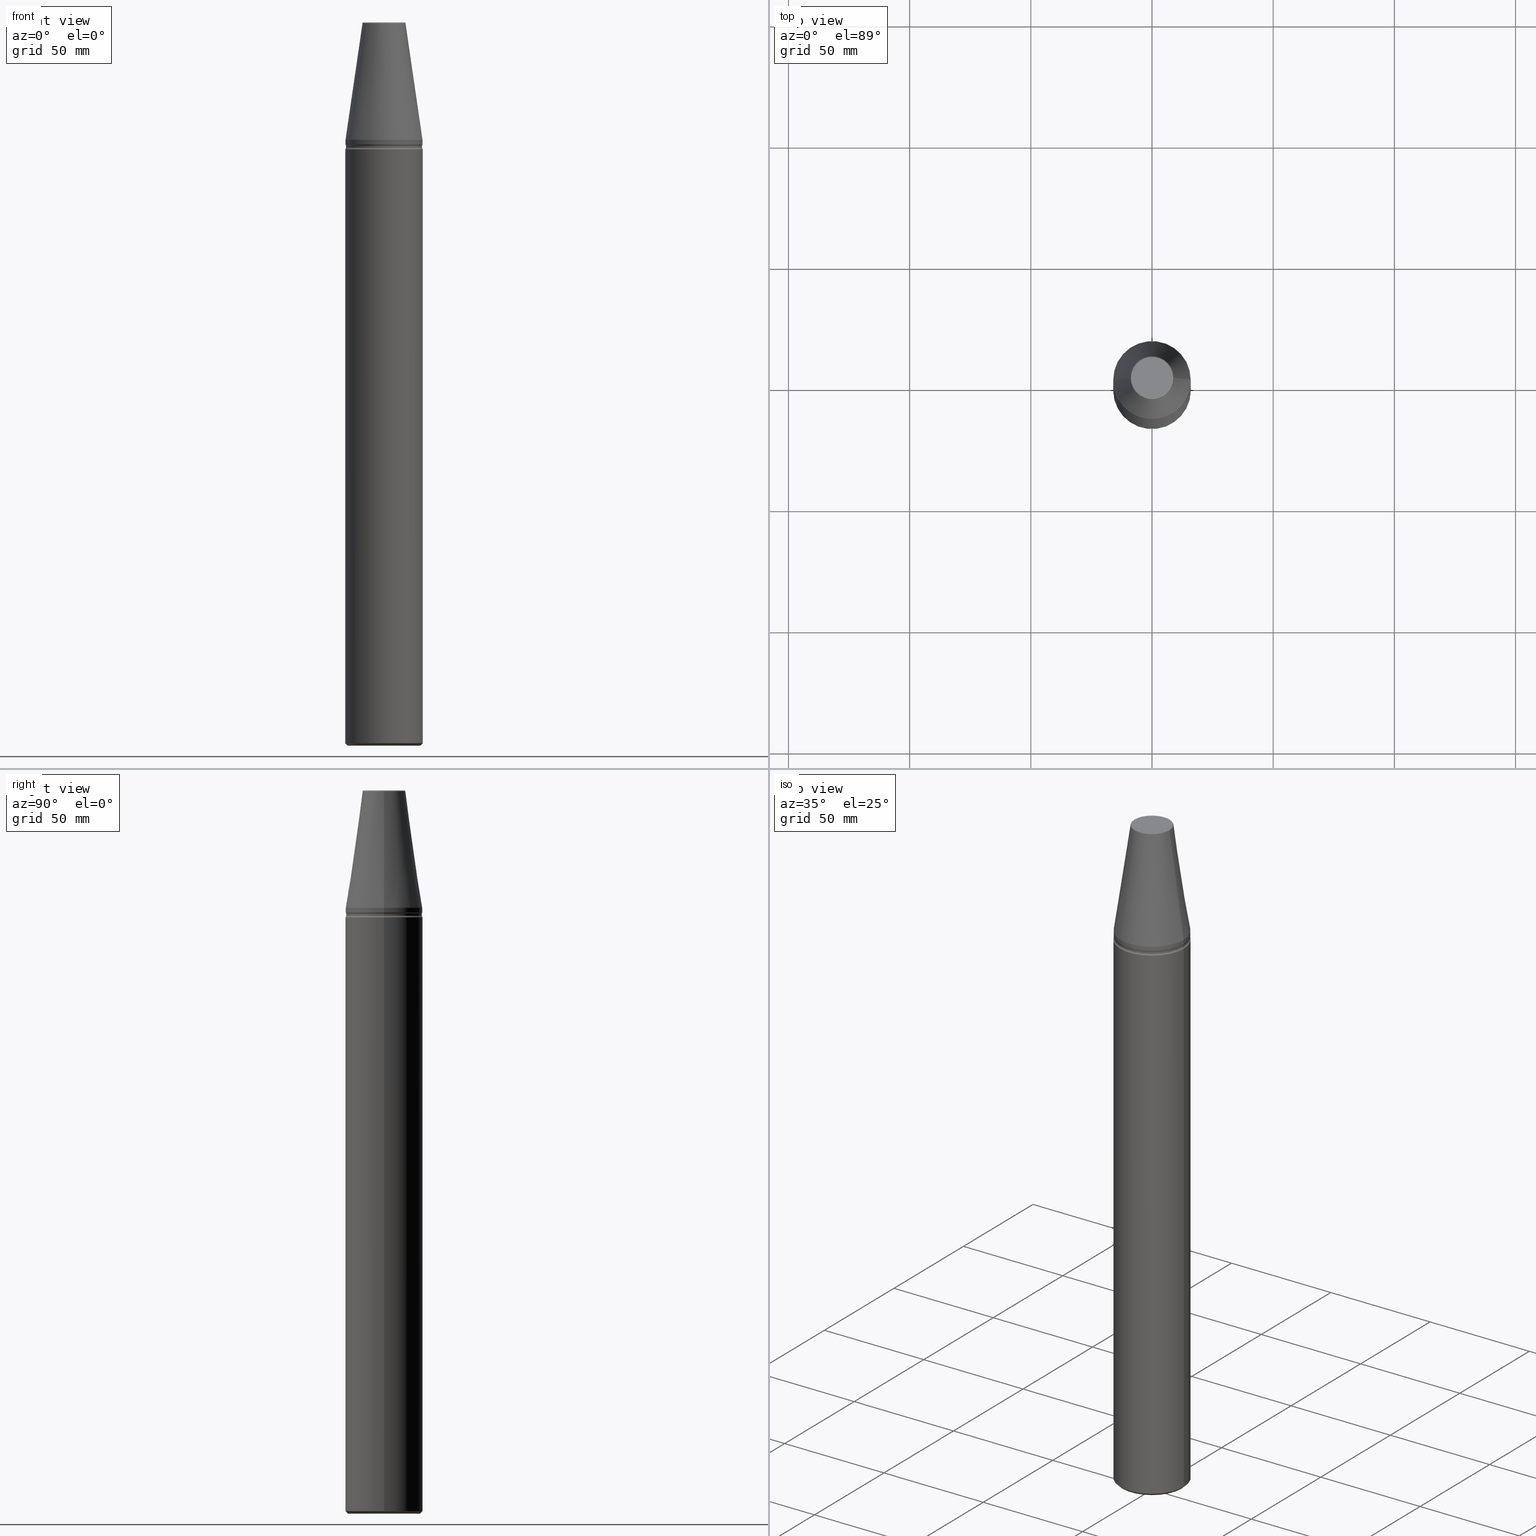
[diagram: canonical four-view strip — front | top / right | iso, engineering-drawing reading convention]
A machine part, canonical four-view strip (front | top / right | iso — engineering-drawing reading convention). The complete STEP part file that produces these views, byte-faithful:
ISO-10303-21;
HEADER;
FILE_DESCRIPTION (( 'STEP AP203' ),
    '1' );
FILE_NAME ('BT30 MASTER MANDRELL DIA 32 L 250.STEP',
    '2019-05-24T06:28:05',
    ( '' ),
    ( '' ),
    'SwSTEP 2.0',
    'SolidWorks 2014',
    '' );
FILE_SCHEMA (( 'CONFIG_CONTROL_DESIGN' ));
ENDSEC;

DATA;
#1 = AXIS2_PLACEMENT_3D ( 'NONE', #134, #492, #491 ) ;
#2 = DATE_AND_TIME ( #138, #247 ) ;
#3 = ORIENTED_EDGE ( 'NONE', *, *, #17, .F. ) ;
#4 = EDGE_CURVE ( 'NONE', #451, #322, #252, .T. ) ;
#5 = AXIS2_PLACEMENT_3D ( 'NONE', #18, #308, #188 ) ;
#6 = EDGE_LOOP ( 'NONE', ( #277, #95, #214, #128 ) ) ;
#7 = CARTESIAN_POINT ( 'NONE',  ( 0.0000000000000000000, 0.0000000000000000000, -249.0000000000001100 ) ) ;
#8 = CC_DESIGN_APPROVAL ( #21, ( #161 ) ) ;
#9 = EDGE_CURVE ( 'NONE', #198, #57, #10, .T. ) ;
#10 = CIRCLE ( 'NONE', #131, 15.87499999999986100 ) ;
#11 = CARTESIAN_POINT ( 'NONE',  ( -15.99999999999979200, 1.959434878635739500E-015, 101.9861575583861400 ) ) ;
#12 = PERSON ( 'UNSPECIFIED', 'UNSPECIFIED', 'UNSPECIFIED', ('UNSPECIFIED'), ('UNSPECIFIED'), ('UNSPECIFIED') ) ;
#13 = CARTESIAN_POINT ( 'NONE',  ( 0.0000000000000000000, 15.00000000000012400, -250.0000000000000000 ) ) ;
#14 = LINE ( 'NONE', #343, #246 ) ;
#15 = EDGE_CURVE ( 'NONE', #451, #117, #351, .T. ) ;
#16 = AXIS2_PLACEMENT_3D ( 'NONE', #377, #475, #147 ) ;
#17 = EDGE_CURVE ( 'NONE', #415, #395, #148, .T. ) ;
#18 = CARTESIAN_POINT ( 'NONE',  ( 0.0000000000000000000, 0.0000000000000000000, -249.9999999999997700 ) ) ;
#19 = ADVANCED_FACE ( 'NONE', ( #440 ), #119, .T. ) ;
#20 = CC_DESIGN_PERSON_AND_ORGANIZATION_ASSIGNMENT ( #105, #407, ( #506 ) ) ;
#21 = APPROVAL ( #387, 'UNSPECIFIED' ) ;
#22 = ORIENTED_EDGE ( 'NONE', *, *, #55, .F. ) ;
#23 = CARTESIAN_POINT ( 'NONE',  ( 15.67499999999966100, 0.0000000000000000000, -2.428901384101678200 ) ) ;
#24 = EDGE_LOOP ( 'NONE', ( #288, #461, #336, #282 ) ) ;
#25 = VECTOR ( 'NONE', #391, 1000.000000000000100 ) ;
#26 = CARTESIAN_POINT ( 'NONE',  ( -15.99999999999979200, 0.0000000000000000000, -4.000000000000447600 ) ) ;
#27 = CARTESIAN_POINT ( 'NONE',  ( 0.0000000000000000000, 0.0000000000000000000, -249.9999999999997700 ) ) ;
#28 = ORIENTED_EDGE ( 'NONE', *, *, #168, .F. ) ;
#29 = DIRECTION ( 'NONE',  ( 1.000000000000000000, 0.0000000000000000000, 0.0000000000000000000 ) ) ;
#30 = CARTESIAN_POINT ( 'NONE',  ( 0.0000000000000000000, 0.0000000000000000000, 2.220446049250313100E-013 ) ) ;
#31 = DIRECTION ( 'NONE',  ( -1.000000000000000000, 1.224646799147350000E-016, 0.0000000000000000000 ) ) ;
#32 = AXIS2_PLACEMENT_3D ( 'NONE', #413, #296, #486 ) ;
#33 = CARTESIAN_POINT ( 'NONE',  ( 0.0000000000000000000, 0.0000000000000000000, -249.9999999999997700 ) ) ;
#34 = CIRCLE ( 'NONE', #125, 15.99999999999979200 ) ;
#35 = DIRECTION ( 'NONE',  ( -0.0000000000000000000, -0.0000000000000000000, 1.000000000000000000 ) ) ;
#36 = CARTESIAN_POINT ( 'NONE',  ( 15.67499999999966100, 1.939534368149586900E-015, -3.303035250834529500 ) ) ;
#37 = ADVANCED_FACE ( 'NONE', ( #326 ), #420, .T. ) ;
#38 = ORIENTED_EDGE ( 'NONE', *, *, #15, .T. ) ;
#39 = DIRECTION ( 'NONE',  ( 1.000000000000000000, 0.0000000000000000000, 0.0000000000000000000 ) ) ;
#40 = EDGE_LOOP ( 'NONE', ( #84, #416, #75, #452 ) ) ;
#41 = CARTESIAN_POINT ( 'NONE',  ( 0.0000000000000000000, 0.0000000000000000000, -2.428901384101678200 ) ) ;
#42 = VECTOR ( 'NONE', #423, 1000.000000000000000 ) ;
#43 = VERTEX_POINT ( 'NONE', #331 ) ;
#44 = LINE ( 'NONE', #26, #25 ) ;
#45 = DIRECTION ( 'NONE',  ( -0.0000000000000000000, -0.0000000000000000000, 1.000000000000000000 ) ) ;
#46 = EDGE_LOOP ( 'NONE', ( #345, #226, #265, #273 ) ) ;
#47 = CARTESIAN_POINT ( 'NONE',  ( 15.99999999999979200, 0.0000000000000000000, -249.0000000000001100 ) ) ;
#48 = AXIS2_PLACEMENT_3D ( 'NONE', #361, #335, #444 ) ;
#49 = DIRECTION ( 'NONE',  ( 1.000000000000000000, 0.0000000000000000000, 0.0000000000000000000 ) ) ;
#50 = FACE_OUTER_BOUND ( 'NONE', #238, .T. ) ;
#51 = DIRECTION ( 'NONE',  ( 1.000000000000000000, 0.0000000000000000000, 0.0000000000000000000 ) ) ;
#52 = CARTESIAN_POINT ( 'NONE',  ( -8.384228427309015100, 1.057067554674890200E-015, 48.39999999999985600 ) ) ;
#53 = CARTESIAN_POINT ( 'NONE',  ( -15.99999999999979200, 1.959434878635739500E-015, -249.0000000000001100 ) ) ;
#54 = DIRECTION ( 'NONE',  ( -1.000000000000000000, 0.0000000000000000000, 0.0000000000000000000 ) ) ;
#55 = EDGE_CURVE ( 'NONE', #456, #410, #339, .T. ) ;
#56 = DIRECTION ( 'NONE',  ( 1.000000000000000000, 0.0000000000000000000, 0.0000000000000000000 ) ) ;
#57 = VERTEX_POINT ( 'NONE', #330 ) ;
#58 = AXIS2_PLACEMENT_3D ( 'NONE', #146, #35, #49 ) ;
#59 = AXIS2_PLACEMENT_3D ( 'NONE', #468, #235, #275 ) ;
#60 = LOCAL_TIME ( 11, 58, 5.000000000000000000, #182 ) ;
#61 = EDGE_LOOP ( 'NONE', ( #301, #334, #28, #155 ) ) ;
#62 = TOROIDAL_SURFACE ( 'NONE', #122, 8.384228427309237100, 0.5000000000002493600 ) ;
#63 = EDGE_CURVE ( 'NONE', #451, #476, #430, .T. ) ;
#64 = PRODUCT_DEFINITION_SHAPE ( 'NONE', 'NONE',  #73 ) ;
#65 = DATE_TIME_ROLE ( 'classification_date' ) ;
#66 = DIRECTION ( 'NONE',  ( -0.0000000000000000000, -0.0000000000000000000, 1.000000000000000000 ) ) ;
#67 = DIRECTION ( 'NONE',  ( 0.7071067811865474600, 0.0000000000000000000, 0.7071067811865475700 ) ) ;
#68 = CARTESIAN_POINT ( 'NONE',  ( 0.0000000000000000000, 0.0000000000000000000, 2.220446049250313100E-013 ) ) ;
#69 = CIRCLE ( 'NONE', #294, 15.87499999999986100 ) ;
#70 = DIRECTION ( 'NONE',  ( 1.000000000000000000, 0.0000000000000000000, 0.0000000000000000000 ) ) ;
#71 = EDGE_CURVE ( 'NONE', #43, #395, #234, .T. ) ;
#72 = LINE ( 'NONE', #196, #118 ) ;
#73 = PRODUCT_DEFINITION ( 'UNKNOWN', '', #111, #392 ) ;
#74 = CALENDAR_DATE ( 2019, 24, 5 ) ;
#75 = ORIENTED_EDGE ( 'NONE', *, *, #328, .F. ) ;
#76 = EDGE_CURVE ( 'NONE', #359, #117, #133, .T. ) ;
#77 = CYLINDRICAL_SURFACE ( 'NONE', #523, 15.99999999999979200 ) ;
#78 = PERSON_AND_ORGANIZATION_ROLE ( 'design_supplier' ) ;
#79 = DIRECTION ( 'NONE',  ( 0.0000000000000000000, 0.0000000000000000000, -1.000000000000000000 ) ) ;
#80 = EDGE_CURVE ( 'NONE', #322, #144, #514, .T. ) ;
#81 = ORIENTED_EDGE ( 'NONE', *, *, #243, .T. ) ;
#82 = DIRECTION ( 'NONE',  ( -0.0000000000000000000, -0.0000000000000000000, 1.000000000000000000 ) ) ;
#83 = ORIENTED_EDGE ( 'NONE', *, *, #328, .T. ) ;
#84 = ORIENTED_EDGE ( 'NONE', *, *, #104, .T. ) ;
#85 = DIRECTION ( 'NONE',  ( 0.0000000000000000000, -1.000000000000000000, 0.0000000000000000000 ) ) ;
#86 = APPROVAL_STATUS ( 'not_yet_approved' ) ;
#87 = VECTOR ( 'NONE', #166, 1000.000000000000100 ) ;
#88 = CARTESIAN_POINT ( 'NONE',  ( 0.0000000000000000000, 0.0000000000000000000, -3.303035250834529500 ) ) ;
#89 = FACE_OUTER_BOUND ( 'NONE', #157, .T. ) ;
#90 = SECURITY_CLASSIFICATION_LEVEL ( 'unclassified' ) ;
#91 = ADVANCED_FACE ( 'NONE', ( #403 ), #390, .T. ) ;
#92 = DIRECTION ( 'NONE',  ( 1.000000000000000000, 0.0000000000000000000, 0.0000000000000000000 ) ) ;
#93 = ADVANCED_FACE ( 'NONE', ( #220 ), #309, .T. ) ;
#94 = PERSON_AND_ORGANIZATION ( #12, #217 ) ;
#95 = ORIENTED_EDGE ( 'NONE', *, *, #244, .T. ) ;
#96 = DIRECTION ( 'NONE',  ( 1.000000000000000000, 0.0000000000000000000, 0.0000000000000000000 ) ) ;
#97 = APPROVAL_ROLE ( '' ) ;
#98 = CC_DESIGN_DATE_AND_TIME_ASSIGNMENT ( #424, #224, ( #73 ) ) ;
#99 = DIRECTION ( 'NONE',  ( 1.000000000000000000, 0.0000000000000000000, 0.0000000000000000000 ) ) ;
#100 = CC_DESIGN_APPROVAL ( #418, ( #73 ) ) ;
#101 = VERTEX_POINT ( 'NONE', #402 ) ;
#102 = ADVANCED_BREP_SHAPE_REPRESENTATION ( 'BT30 MASTER MANDRELL DIA 32 L 250', ( #490, #201 ), #436 ) ;
#103 = CIRCLE ( 'NONE', #1, 15.87499999999986100 ) ;
#104 = EDGE_CURVE ( 'NONE', #410, #398, #107, .T. ) ;
#105 = PERSON_AND_ORGANIZATION ( #12, #217 ) ;
#106 = APPLICATION_PROTOCOL_DEFINITION ( 'international standard', 'config_control_design', 1994, #272 ) ;
#107 = CIRCLE ( 'NONE', #302, 15.99999999999979200 ) ;
#108 = DIRECTION ( 'NONE',  ( 1.000000000000000000, 0.0000000000000000000, 0.0000000000000000000 ) ) ;
#109 = DIRECTION ( 'NONE',  ( 1.000000000000000000, 0.0000000000000000000, 0.0000000000000000000 ) ) ;
#110 = CARTESIAN_POINT ( 'NONE',  ( 15.87499999999986100, 1.944126793646406300E-015, 2.220446049250313100E-013 ) ) ;
#111 = PRODUCT_DEFINITION_FORMATION_WITH_SPECIFIED_SOURCE ( 'ANY', '', #506, .NOT_KNOWN. ) ;
#112 = CARTESIAN_POINT ( 'NONE',  ( 15.99999999999979200, 0.0000000000000000000, -4.000000000000447600 ) ) ;
#113 = COORDINATED_UNIVERSAL_TIME_OFFSET ( 5, 30, .AHEAD. ) ;
#114 = ORIENTED_EDGE ( 'NONE', *, *, #153, .T. ) ;
#115 = AXIS2_PLACEMENT_3D ( 'NONE', #88, #300, #145 ) ;
#116 = CARTESIAN_POINT ( 'NONE',  ( 0.0000000000000000000, 0.0000000000000000000, 48.39999999999985600 ) ) ;
#117 = VERTEX_POINT ( 'NONE', #401 ) ;
#118 = VECTOR ( 'NONE', #66, 1000.000000000000000 ) ;
#119 = CONICAL_SURFACE ( 'NONE', #152, 15.67499999999966100, 0.4363323129987790000 ) ;
#120 = APPLICATION_CONTEXT ( 'configuration controlled 3d designs of mechanical parts and assemblies' ) ;
#121 = DIRECTION ( 'NONE',  ( -0.0000000000000000000, -0.0000000000000000000, 1.000000000000000000 ) ) ;
#122 = AXIS2_PLACEMENT_3D ( 'NONE', #479, #82, #427 ) ;
#123 = AXIS2_PLACEMENT_3D ( 'NONE', #33, #121, #56 ) ;
#124 = LOCAL_TIME ( 11, 58, 5.000000000000000000, #237 ) ;
#125 = AXIS2_PLACEMENT_3D ( 'NONE', #281, #442, #414 ) ;
#126 = VERTEX_POINT ( 'NONE', #112 ) ;
#127 = AXIS2_PLACEMENT_3D ( 'NONE', #172, #443, #338 ) ;
#128 = ORIENTED_EDGE ( 'NONE', *, *, #240, .F. ) ;
#129 = PLANE ( 'NONE',  #449 ) ;
#130 = CONICAL_SURFACE ( 'NONE', #239, 15.67499999999966100, 0.4363323129987790000 ) ;
#131 = AXIS2_PLACEMENT_3D ( 'NONE', #429, #233, #219 ) ;
#132 = CARTESIAN_POINT ( 'NONE',  ( 0.0000000000000000000, 0.0000000000000000000, -1.999999999999557700 ) ) ;
#133 = CIRCLE ( 'NONE', #465, 8.384228427309015100 ) ;
#134 = CARTESIAN_POINT ( 'NONE',  ( 0.0000000000000000000, 0.0000000000000000000, 2.220446049250313100E-013 ) ) ;
#135 = ADVANCED_FACE ( 'NONE', ( #208 ), #129, .F. ) ;
#136 = APPROVAL_PERSON_ORGANIZATION ( #501, #418, #458 ) ;
#137 = DIRECTION ( 'NONE',  ( 0.0000000000000000000, -0.0000000000000000000, 1.000000000000000000 ) ) ;
#138 = CALENDAR_DATE ( 2019, 24, 5 ) ;
#139 = ORIENTED_EDGE ( 'NONE', *, *, #408, .F. ) ;
#140 = ADVANCED_FACE ( 'NONE', ( #295 ), #421, .F. ) ;
#141 = CARTESIAN_POINT ( 'NONE',  ( 15.87499999999986100, 0.0000000000000000000, 2.220446049250313100E-013 ) ) ;
#142 =( NAMED_UNIT ( * ) SI_UNIT ( $, .STERADIAN. ) SOLID_ANGLE_UNIT ( ) );
#143 = PERSON_AND_ORGANIZATION_ROLE ( 'classification_officer' ) ;
#144 = VERTEX_POINT ( 'NONE', #193 ) ;
#145 = DIRECTION ( 'NONE',  ( 1.000000000000000000, 0.0000000000000000000, 0.0000000000000000000 ) ) ;
#146 = CARTESIAN_POINT ( 'NONE',  ( 0.0000000000000000000, 0.0000000000000000000, 101.9861575583861400 ) ) ;
#147 = DIRECTION ( 'NONE',  ( -1.000000000000000000, 0.0000000000000000000, 0.0000000000000000000 ) ) ;
#148 = LINE ( 'NONE', #291, #245 ) ;
#149 = DIRECTION ( 'NONE',  ( 1.000000000000000000, 0.0000000000000000000, 0.0000000000000000000 ) ) ;
#150 = PERSON_AND_ORGANIZATION_ROLE ( 'creator' ) ;
#151 = VECTOR ( 'NONE', #45, 1000.000000000000000 ) ;
#152 = AXIS2_PLACEMENT_3D ( 'NONE', #41, #292, #149 ) ;
#153 = EDGE_CURVE ( 'NONE', #57, #476, #494, .T. ) ;
#154 = DIRECTION ( 'NONE',  ( 0.4226182617406839000, 5.175581015019467700E-017, -0.9063077870366571500 ) ) ;
#155 = ORIENTED_EDGE ( 'NONE', *, *, #153, .F. ) ;
#156 = AXIS2_PLACEMENT_3D ( 'NONE', #7, #375, #340 ) ;
#157 = EDGE_LOOP ( 'NONE', ( #404, #248, #114, #160 ) ) ;
#158 = CIRCLE ( 'NONE', #59, 8.878994820583630000 ) ;
#159 = AXIS2_PLACEMENT_3D ( 'NONE', #68, #400, #513 ) ;
#160 = ORIENTED_EDGE ( 'NONE', *, *, #243, .F. ) ;
#161 = SECURITY_CLASSIFICATION ( '', '', #90 ) ;
#162 = EDGE_LOOP ( 'NONE', ( #524, #212, #255, #22 ) ) ;
#163 =( NAMED_UNIT ( * ) PLANE_ANGLE_UNIT ( ) SI_UNIT ( $, .RADIAN. ) );
#164 = AXIS2_PLACEMENT_3D ( 'NONE', #368, #254, #303 ) ;
#165 = FACE_OUTER_BOUND ( 'NONE', #370, .T. ) ;
#166 = DIRECTION ( 'NONE',  ( 0.4226182617408775800, 0.0000000000000000000, 0.9063077870365667800 ) ) ;
#167 = AXIS2_PLACEMENT_3D ( 'NONE', #30, #249, #177 ) ;
#168 = EDGE_CURVE ( 'NONE', #476, #144, #191, .T. ) ;
#169 = ORIENTED_EDGE ( 'NONE', *, *, #63, .F. ) ;
#170 = ORIENTED_EDGE ( 'NONE', *, *, #495, .F. ) ;
#171 = FACE_OUTER_BOUND ( 'NONE', #242, .T. ) ;
#172 = CARTESIAN_POINT ( 'NONE',  ( 0.0000000000000000000, 0.0000000000000000000, 101.9861575583861400 ) ) ;
#173 = ORIENTED_EDGE ( 'NONE', *, *, #503, .F. ) ;
#174 = AXIS2_PLACEMENT_3D ( 'NONE', #262, #218, #477 ) ;
#175 = DIRECTION ( 'NONE',  ( 1.000000000000000000, 0.0000000000000000000, 0.0000000000000000000 ) ) ;
#176 = VECTOR ( 'NONE', #192, 1000.000000000000000 ) ;
#177 = DIRECTION ( 'NONE',  ( -1.000000000000000000, 0.0000000000000000000, 0.0000000000000000000 ) ) ;
#178 = APPLICATION_PROTOCOL_DEFINITION ( 'international standard', 'config_control_design', 1994, #120 ) ;
#179 = CARTESIAN_POINT ( 'NONE',  ( 8.384228427309237100, 0.0000000000000000000, 47.89999999999960800 ) ) ;
#180 = ADVANCED_FACE ( 'NONE', ( #89 ), #417, .T. ) ;
#181 = EDGE_LOOP ( 'NONE', ( #318, #204, #507, #274 ) ) ;
#182 = COORDINATED_UNIVERSAL_TIME_OFFSET ( 5, 30, .AHEAD. ) ;
#183 = PERSON_AND_ORGANIZATION_ROLE ( 'creator' ) ;
#184 = EDGE_LOOP ( 'NONE', ( #173, #470, #83, #170 ) ) ;
#185 = FACE_OUTER_BOUND ( 'NONE', #24, .T. ) ;
#186 = AXIS2_PLACEMENT_3D ( 'NONE', #441, #512, #99 ) ;
#187 = EDGE_CURVE ( 'NONE', #190, #43, #72, .T. ) ;
#188 = DIRECTION ( 'NONE',  ( 1.000000000000000000, 0.0000000000000000000, 0.0000000000000000000 ) ) ;
#189 = VECTOR ( 'NONE', #485, 1000.000000000000100 ) ;
#190 = VERTEX_POINT ( 'NONE', #36 ) ;
#191 = CIRCLE ( 'NONE', #159, 15.87499999999986100 ) ;
#192 = DIRECTION ( 'NONE',  ( -0.0000000000000000000, -0.0000000000000000000, 1.000000000000000000 ) ) ;
#193 = CARTESIAN_POINT ( 'NONE',  ( -15.87499999999986100, 1.944126793646406300E-015, 2.220446049250313100E-013 ) ) ;
#194 = LOCAL_TIME ( 11, 58, 5.000000000000000000, #298 ) ;
#195 = CLOSED_SHELL ( 'NONE', ( #447, #37, #257, #19, #93, #293, #480, #91, #140, #135, #450, #365, #405, #297, #518, #180, #223, #332 ) ) ;
#196 = CARTESIAN_POINT ( 'NONE',  ( 15.67499999999966100, 0.0000000000000000000, 101.9861575583861400 ) ) ;
#197 = CARTESIAN_POINT ( 'NONE',  ( 8.878994820583630000, 1.515745026156886500E-015, 47.97215411344146900 ) ) ;
#198 = VERTEX_POINT ( 'NONE', #469 ) ;
#199 = EDGE_CURVE ( 'NONE', #398, #410, #216, .T. ) ;
#200 = LINE ( 'NONE', #455, #189 ) ;
#201 = AXIS2_PLACEMENT_3D ( 'NONE', #508, #384, #51 ) ;
#202 = CARTESIAN_POINT ( 'NONE',  ( 15.00000000000012400, 0.0000000000000000000, -249.9999999999997700 ) ) ;
#203 = DIRECTION ( 'NONE',  ( -0.0000000000000000000, -0.0000000000000000000, 1.000000000000000000 ) ) ;
#204 = ORIENTED_EDGE ( 'NONE', *, *, #63, .T. ) ;
#205 = ORIENTED_EDGE ( 'NONE', *, *, #408, .T. ) ;
#206 = EDGE_CURVE ( 'NONE', #322, #359, #315, .T. ) ;
#207 = EDGE_CURVE ( 'NONE', #198, #144, #510, .T. ) ;
#208 = FACE_OUTER_BOUND ( 'NONE', #396, .T. ) ;
#209 = DIRECTION ( 'NONE',  ( -1.000000000000000000, 0.0000000000000000000, -0.0000000000000000000 ) ) ;
#210 = AXIS2_PLACEMENT_3D ( 'NONE', #435, #79, #54 ) ;
#211 = APPROVAL_DATE_TIME ( #311, #324 ) ;
#212 = ORIENTED_EDGE ( 'NONE', *, *, #487, .T. ) ;
#213 = EDGE_CURVE ( 'NONE', #456, #101, #231, .T. ) ;
#214 = ORIENTED_EDGE ( 'NONE', *, *, #271, .F. ) ;
#215 = ORIENTED_EDGE ( 'NONE', *, *, #517, .F. ) ;
#216 = CIRCLE ( 'NONE', #156, 15.99999999999979200 ) ;
#217 = ORGANIZATION ( 'UNSPECIFIED', 'UNSPECIFIED', '' ) ;
#218 = DIRECTION ( 'NONE',  ( -0.0000000000000000000, -0.0000000000000000000, 1.000000000000000000 ) ) ;
#219 = DIRECTION ( 'NONE',  ( 1.000000000000000000, 0.0000000000000000000, 0.0000000000000000000 ) ) ;
#220 = FACE_OUTER_BOUND ( 'NONE', #437, .T. ) ;
#221 = DIRECTION ( 'NONE',  ( -0.0000000000000000000, -0.0000000000000000000, 1.000000000000000000 ) ) ;
#222 = DIRECTION ( 'NONE',  ( -0.0000000000000000000, -0.0000000000000000000, 1.000000000000000000 ) ) ;
#223 = ADVANCED_FACE ( 'NONE', ( #305 ), #290, .T. ) ;
#224 = DATE_TIME_ROLE ( 'creation_date' ) ;
#225 = APPROVAL_PERSON_ORGANIZATION ( #321, #324, #453 ) ;
#226 = ORIENTED_EDGE ( 'NONE', *, *, #310, .F. ) ;
#227 = DIRECTION ( 'NONE',  ( 0.1443082268835062000, 1.767266081435159400E-017, -0.9895327865481458000 ) ) ;
#228 = CARTESIAN_POINT ( 'NONE',  ( 0.0000000000000000000, 0.0000000000000000000, -249.9999999999997700 ) ) ;
#229 = PRODUCT_RELATED_PRODUCT_CATEGORY ( 'detail', '', ( #506 ) ) ;
#230 = ORIENTED_EDGE ( 'NONE', *, *, #76, .F. ) ;
#231 = CIRCLE ( 'NONE', #314, 15.00000000000012400 ) ;
#232 = DIRECTION ( 'NONE',  ( -0.7071067811865474600, 8.659560562354931600E-017, 0.7071067811865475700 ) ) ;
#233 = DIRECTION ( 'NONE',  ( -0.0000000000000000000, -0.0000000000000000000, 1.000000000000000000 ) ) ;
#234 = CIRCLE ( 'NONE', #526, 15.67499999999966100 ) ;
#235 = DIRECTION ( 'NONE',  ( -0.0000000000000000000, -0.0000000000000000000, 1.000000000000000000 ) ) ;
#236 = APPROVAL_STATUS ( 'not_yet_approved' ) ;
#237 = COORDINATED_UNIVERSAL_TIME_OFFSET ( 5, 30, .AHEAD. ) ;
#238 = EDGE_LOOP ( 'NONE', ( #3, #357, #493, #215 ) ) ;
#239 = AXIS2_PLACEMENT_3D ( 'NONE', #325, #519, #251 ) ;
#240 = EDGE_CURVE ( 'NONE', #43, #57, #489, .T. ) ;
#241 = CARTESIAN_POINT ( 'NONE',  ( 15.99999999999979200, 0.0000000000000000000, 101.9861575583861400 ) ) ;
#242 = EDGE_LOOP ( 'NONE', ( #463, #205, #313, #482 ) ) ;
#243 = EDGE_CURVE ( 'NONE', #144, #476, #103, .T. ) ;
#244 = EDGE_CURVE ( 'NONE', #395, #198, #200, .T. ) ;
#245 = VECTOR ( 'NONE', #360, 1000.000000000000000 ) ;
#246 = VECTOR ( 'NONE', #154, 1000.000000000000100 ) ;
#247 = LOCAL_TIME ( 11, 58, 5.000000000000000000, #341 ) ;
#248 = ORIENTED_EDGE ( 'NONE', *, *, #9, .T. ) ;
#249 = DIRECTION ( 'NONE',  ( 0.0000000000000000000, 0.0000000000000000000, -1.000000000000000000 ) ) ;
#250 = AXIS2_PLACEMENT_3D ( 'NONE', #376, #286, #31 ) ;
#251 = DIRECTION ( 'NONE',  ( 1.000000000000000000, 0.0000000000000000000, 0.0000000000000000000 ) ) ;
#252 = CIRCLE ( 'NONE', #164, 8.878994820583630000 ) ;
#253 = UNCERTAINTY_MEASURE_WITH_UNIT (LENGTH_MEASURE( 1.000000000000000100E-005 ), #438, 'distance_accuracy_value', 'NONE');
#254 = DIRECTION ( 'NONE',  ( -0.0000000000000000000, -0.0000000000000000000, 1.000000000000000000 ) ) ;
#255 = ORIENTED_EDGE ( 'NONE', *, *, #104, .F. ) ;
#256 = LINE ( 'NONE', #241, #151 ) ;
#257 = ADVANCED_FACE ( 'NONE', ( #399 ), #280, .T. ) ;
#258 = DIRECTION ( 'NONE',  ( 1.000000000000000000, 0.0000000000000000000, 0.0000000000000000000 ) ) ;
#259 = EDGE_CURVE ( 'NONE', #287, #126, #373, .T. ) ;
#260 = ORIENTED_EDGE ( 'NONE', *, *, #71, .F. ) ;
#261 = CC_DESIGN_DATE_AND_TIME_ASSIGNMENT ( #481, #65, ( #161 ) ) ;
#262 = CARTESIAN_POINT ( 'NONE',  ( 0.0000000000000000000, 0.0000000000000000000, 47.89999999999960800 ) ) ;
#263 = ORIENTED_EDGE ( 'NONE', *, *, #80, .T. ) ;
#264 = CONICAL_SURFACE ( 'NONE', #123, 15.00000000000012400, 0.7853981633974482800 ) ;
#265 = ORIENTED_EDGE ( 'NONE', *, *, #495, .T. ) ;
#266 = EDGE_CURVE ( 'NONE', #398, #287, #385, .T. ) ;
#267 = CC_DESIGN_SECURITY_CLASSIFICATION ( #161, ( #111 ) ) ;
#268 = DIRECTION ( 'NONE',  ( -1.000000000000000000, 0.0000000000000000000, 0.0000000000000000000 ) ) ;
#269 = DIRECTION ( 'NONE',  ( -0.0000000000000000000, -0.0000000000000000000, 1.000000000000000000 ) ) ;
#270 = CYLINDRICAL_SURFACE ( 'NONE', #58, 15.67499999999966100 ) ;
#271 = EDGE_CURVE ( 'NONE', #57, #198, #69, .T. ) ;
#272 = APPLICATION_CONTEXT ( 'configuration controlled 3d designs of mechanical parts and assemblies' ) ;
#273 = ORIENTED_EDGE ( 'NONE', *, *, #259, .T. ) ;
#274 = ORIENTED_EDGE ( 'NONE', *, *, #80, .F. ) ;
#275 = DIRECTION ( 'NONE',  ( 1.000000000000000000, 0.0000000000000000000, 0.0000000000000000000 ) ) ;
#276 = APPROVAL_DATE_TIME ( #369, #21 ) ;
#277 = ORIENTED_EDGE ( 'NONE', *, *, #71, .T. ) ;
#278 = EDGE_CURVE ( 'NONE', #117, #359, #478, .T. ) ;
#279 = CONICAL_SURFACE ( 'NONE', #525, 15.99999999999979200, 0.4363323129985652300 ) ;
#280 = CYLINDRICAL_SURFACE ( 'NONE', #32, 15.87499999999986100 ) ;
#281 = CARTESIAN_POINT ( 'NONE',  ( 0.0000000000000000000, 0.0000000000000000000, -4.000000000000447600 ) ) ;
#282 = ORIENTED_EDGE ( 'NONE', *, *, #15, .F. ) ;
#283 = APPROVAL_PERSON_ORGANIZATION ( #381, #21, #97 ) ;
#284 = ORIENTED_EDGE ( 'NONE', *, *, #500, .T. ) ;
#285 = CYLINDRICAL_SURFACE ( 'NONE', #48, 15.99999999999979200 ) ;
#286 = DIRECTION ( 'NONE',  ( 1.224646799147353200E-016, 1.000000000000000000, 0.0000000000000000000 ) ) ;
#287 = VERTEX_POINT ( 'NONE', #439 ) ;
#288 = ORIENTED_EDGE ( 'NONE', *, *, #4, .T. ) ;
#289 = CARTESIAN_POINT ( 'NONE',  ( 0.0000000000000000000, 0.0000000000000000000, 101.9861575583861400 ) ) ;
#290 = CONICAL_SURFACE ( 'NONE', #16, 15.87499999999986100, 0.1448138461595584500 ) ;
#291 = CARTESIAN_POINT ( 'NONE',  ( -15.67499999999966100, 1.919633857663434700E-015, 101.9861575583861400 ) ) ;
#292 = DIRECTION ( 'NONE',  ( -0.0000000000000000000, -0.0000000000000000000, 1.000000000000000000 ) ) ;
#293 = ADVANCED_FACE ( 'NONE', ( #363 ), #354, .T. ) ;
#294 = AXIS2_PLACEMENT_3D ( 'NONE', #132, #371, #96 ) ;
#295 = FACE_OUTER_BOUND ( 'NONE', #505, .T. ) ;
#296 = DIRECTION ( 'NONE',  ( -0.0000000000000000000, -0.0000000000000000000, 1.000000000000000000 ) ) ;
#297 = ADVANCED_FACE ( 'NONE', ( #50 ), #270, .T. ) ;
#298 = COORDINATED_UNIVERSAL_TIME_OFFSET ( 5, 30, .AHEAD. ) ;
#299 = ORIENTED_EDGE ( 'NONE', *, *, #9, .F. ) ;
#300 = DIRECTION ( 'NONE',  ( -0.0000000000000000000, -0.0000000000000000000, 1.000000000000000000 ) ) ;
#301 = ORIENTED_EDGE ( 'NONE', *, *, #271, .T. ) ;
#302 = AXIS2_PLACEMENT_3D ( 'NONE', #433, #329, #175 ) ;
#303 = DIRECTION ( 'NONE',  ( 1.000000000000000000, 0.0000000000000000000, 0.0000000000000000000 ) ) ;
#304 = CARTESIAN_POINT ( 'NONE',  ( 15.87499999999986100, 0.0000000000000000000, 101.9861575583861400 ) ) ;
#305 = FACE_OUTER_BOUND ( 'NONE', #473, .T. ) ;
#306 = DIRECTION ( 'NONE',  ( 0.0000000000000000000, 0.0000000000000000000, -1.000000000000000000 ) ) ;
#307 = CARTESIAN_POINT ( 'NONE',  ( 0.0000000000000000000, 0.0000000000000000000, -4.000000000000447600 ) ) ;
#308 = DIRECTION ( 'NONE',  ( -0.0000000000000000000, -0.0000000000000000000, 1.000000000000000000 ) ) ;
#309 = CYLINDRICAL_SURFACE ( 'NONE', #127, 15.67499999999966100 ) ;
#310 = EDGE_CURVE ( 'NONE', #415, #190, #460, .T. ) ;
#311 = DATE_AND_TIME ( #409, #504 ) ;
#312 = ORIENTED_EDGE ( 'NONE', *, *, #503, .T. ) ;
#313 = ORIENTED_EDGE ( 'NONE', *, *, #55, .T. ) ;
#314 = AXIS2_PLACEMENT_3D ( 'NONE', #228, #344, #29 ) ;
#315 = CIRCLE ( 'NONE', #250, 0.5000000000002502400 ) ;
#316 = SHAPE_DEFINITION_REPRESENTATION ( #64, #102 ) ;
#317 = VECTOR ( 'NONE', #227, 1000.000000000000100 ) ;
#318 = ORIENTED_EDGE ( 'NONE', *, *, #4, .F. ) ;
#319 = DIRECTION ( 'NONE',  ( 1.000000000000000000, 0.0000000000000000000, 0.0000000000000000000 ) ) ;
#320 = DIRECTION ( 'NONE',  ( -0.0000000000000000000, -0.0000000000000000000, 1.000000000000000000 ) ) ;
#321 = PERSON_AND_ORGANIZATION ( #12, #217 ) ;
#322 = VERTEX_POINT ( 'NONE', #353 ) ;
#323 = ORIENTED_EDGE ( 'NONE', *, *, #240, .T. ) ;
#324 = APPROVAL ( #86, 'UNSPECIFIED' ) ;
#325 = CARTESIAN_POINT ( 'NONE',  ( 0.0000000000000000000, 0.0000000000000000000, -2.428901384101678200 ) ) ;
#326 = FACE_OUTER_BOUND ( 'NONE', #181, .T. ) ;
#327 = EDGE_CURVE ( 'NONE', #410, #126, #256, .T. ) ;
#328 = EDGE_CURVE ( 'NONE', #126, #287, #34, .T. ) ;
#329 = DIRECTION ( 'NONE',  ( -0.0000000000000000000, -0.0000000000000000000, 1.000000000000000000 ) ) ;
#330 = CARTESIAN_POINT ( 'NONE',  ( 15.87499999999986100, 0.0000000000000000000, -1.999999999999557700 ) ) ;
#331 = CARTESIAN_POINT ( 'NONE',  ( 15.67499999999966100, 0.0000000000000000000, -2.428901384101678200 ) ) ;
#332 = ADVANCED_FACE ( 'NONE', ( #165 ), #467, .T. ) ;
#333 = PERSON_AND_ORGANIZATION ( #12, #217 ) ;
#334 = ORIENTED_EDGE ( 'NONE', *, *, #207, .T. ) ;
#335 = DIRECTION ( 'NONE',  ( -0.0000000000000000000, -0.0000000000000000000, 1.000000000000000000 ) ) ;
#336 = ORIENTED_EDGE ( 'NONE', *, *, #278, .F. ) ;
#337 = DIRECTION ( 'NONE',  ( -0.0000000000000000000, -0.0000000000000000000, 1.000000000000000000 ) ) ;
#338 = DIRECTION ( 'NONE',  ( 1.000000000000000000, 0.0000000000000000000, 0.0000000000000000000 ) ) ;
#339 = LINE ( 'NONE', #446, #527 ) ;
#340 = DIRECTION ( 'NONE',  ( 1.000000000000000000, 0.0000000000000000000, 0.0000000000000000000 ) ) ;
#341 = COORDINATED_UNIVERSAL_TIME_OFFSET ( 5, 30, .AHEAD. ) ;
#342 = AXIS2_PLACEMENT_3D ( 'NONE', #484, #306, #209 ) ;
#343 = CARTESIAN_POINT ( 'NONE',  ( 15.99999999999979200, 1.959434878635739500E-015, -4.000000000000447600 ) ) ;
#344 = DIRECTION ( 'NONE',  ( -0.0000000000000000000, -0.0000000000000000000, 1.000000000000000000 ) ) ;
#345 = ORIENTED_EDGE ( 'NONE', *, *, #366, .F. ) ;
#346 = ORIENTED_EDGE ( 'NONE', *, *, #266, .F. ) ;
#347 = FACE_OUTER_BOUND ( 'NONE', #356, .T. ) ;
#348 = CC_DESIGN_PERSON_AND_ORGANIZATION_ASSIGNMENT ( #496, #78, ( #111 ) ) ;
#349 = DIRECTION ( 'NONE',  ( -0.1443082268835062000, 0.0000000000000000000, -0.9895327865481458000 ) ) ;
#350 = CC_DESIGN_PERSON_AND_ORGANIZATION_ASSIGNMENT ( #94, #150, ( #111 ) ) ;
#351 = CIRCLE ( 'NONE', #419, 0.5000000000002502400 ) ;
#352 = ORIENTED_EDGE ( 'NONE', *, *, #259, .F. ) ;
#353 = CARTESIAN_POINT ( 'NONE',  ( -8.878994820583630000, 0.0000000000000000000, 47.97215411344146900 ) ) ;
#354 = CONICAL_SURFACE ( 'NONE', #210, 15.99999999999979200, 0.4363323129985652300 ) ;
#355 = DIRECTION ( 'NONE',  ( 1.000000000000000000, 0.0000000000000000000, 0.0000000000000000000 ) ) ;
#356 = EDGE_LOOP ( 'NONE', ( #382, #364, #323, #299 ) ) ;
#357 = ORIENTED_EDGE ( 'NONE', *, *, #310, .T. ) ;
#358 = VECTOR ( 'NONE', #232, 1000.000000000000000 ) ;
#359 = VERTEX_POINT ( 'NONE', #52 ) ;
#360 = DIRECTION ( 'NONE',  ( -0.0000000000000000000, -0.0000000000000000000, 1.000000000000000000 ) ) ;
#361 = CARTESIAN_POINT ( 'NONE',  ( 0.0000000000000000000, 0.0000000000000000000, 101.9861575583861400 ) ) ;
#362 = CARTESIAN_POINT ( 'NONE',  ( 0.0000000000000000000, 0.0000000000000000000, -3.303035250834529500 ) ) ;
#363 = FACE_OUTER_BOUND ( 'NONE', #184, .T. ) ;
#364 = ORIENTED_EDGE ( 'NONE', *, *, #517, .T. ) ;
#365 = ADVANCED_FACE ( 'NONE', ( #448 ), #77, .T. ) ;
#366 = EDGE_CURVE ( 'NONE', #190, #126, #14, .T. ) ;
#367 = ORIENTED_EDGE ( 'NONE', *, *, #213, .F. ) ;
#368 = CARTESIAN_POINT ( 'NONE',  ( 0.0000000000000000000, 0.0000000000000000000, 47.97215411344146900 ) ) ;
#369 = DATE_AND_TIME ( #472, #60 ) ;
#370 = EDGE_LOOP ( 'NONE', ( #498, #284, #38, #230 ) ) ;
#371 = DIRECTION ( 'NONE',  ( -0.0000000000000000000, -0.0000000000000000000, 1.000000000000000000 ) ) ;
#372 = CIRCLE ( 'NONE', #5, 15.00000000000012400 ) ;
#373 = CIRCLE ( 'NONE', #397, 15.99999999999979200 ) ;
#374 = CARTESIAN_POINT ( 'NONE',  ( -15.67499999999966100, 1.919633857663434700E-015, -2.428901384101678200 ) ) ;
#375 = DIRECTION ( 'NONE',  ( -0.0000000000000000000, -0.0000000000000000000, 1.000000000000000000 ) ) ;
#376 = CARTESIAN_POINT ( 'NONE',  ( -8.384228427309237100, 1.026771850682450500E-015, 47.89999999999960800 ) ) ;
#377 = CARTESIAN_POINT ( 'NONE',  ( 0.0000000000000000000, 0.0000000000000000000, 2.220446049250313100E-013 ) ) ;
#378 = AXIS2_PLACEMENT_3D ( 'NONE', #362, #509, #70 ) ;
#379 = DIRECTION ( 'NONE',  ( 0.0000000000000000000, 0.0000000000000000000, -1.000000000000000000 ) ) ;
#380 = DIRECTION ( 'NONE',  ( 1.000000000000000000, 0.0000000000000000000, 0.0000000000000000000 ) ) ;
#381 = PERSON_AND_ORGANIZATION ( #12, #217 ) ;
#382 = ORIENTED_EDGE ( 'NONE', *, *, #244, .F. ) ;
#383 = FACE_OUTER_BOUND ( 'NONE', #46, .T. ) ;
#384 = DIRECTION ( 'NONE',  ( 0.0000000000000000000, 0.0000000000000000000, 1.000000000000000000 ) ) ;
#385 = LINE ( 'NONE', #11, #176 ) ;
#386 = CC_DESIGN_PERSON_AND_ORGANIZATION_ASSIGNMENT ( #394, #143, ( #161 ) ) ;
#387 = APPROVAL_STATUS ( 'not_yet_approved' ) ;
#388 = CC_DESIGN_PERSON_AND_ORGANIZATION_ASSIGNMENT ( #333, #183, ( #73 ) ) ;
#389 = CARTESIAN_POINT ( 'NONE',  ( 0.0000000000000000000, 0.0000000000000000000, -2.428901384101678200 ) ) ;
#390 = CONICAL_SURFACE ( 'NONE', #411, 15.00000000000012400, 0.7853981633974482800 ) ;
#391 = DIRECTION ( 'NONE',  ( -0.4226182617406839000, 0.0000000000000000000, -0.9063077870366571500 ) ) ;
#392 = DESIGN_CONTEXT ( 'detailed design', #120, 'design' ) ;
#393 = CC_DESIGN_APPROVAL ( #324, ( #111 ) ) ;
#394 = PERSON_AND_ORGANIZATION ( #12, #217 ) ;
#395 = VERTEX_POINT ( 'NONE', #374 ) ;
#396 = EDGE_LOOP ( 'NONE', ( #367, #139 ) ) ;
#397 = AXIS2_PLACEMENT_3D ( 'NONE', #488, #221, #355 ) ;
#398 = VERTEX_POINT ( 'NONE', #53 ) ;
#399 = FACE_OUTER_BOUND ( 'NONE', #61, .T. ) ;
#400 = DIRECTION ( 'NONE',  ( -0.0000000000000000000, -0.0000000000000000000, 1.000000000000000000 ) ) ;
#401 = CARTESIAN_POINT ( 'NONE',  ( 8.384228427309015100, 0.0000000000000000000, 48.39999999999985600 ) ) ;
#402 = CARTESIAN_POINT ( 'NONE',  ( -15.00000000000012400, 1.898202538678392400E-015, -249.9999999999997700 ) ) ;
#403 = FACE_OUTER_BOUND ( 'NONE', #162, .T. ) ;
#404 = ORIENTED_EDGE ( 'NONE', *, *, #207, .F. ) ;
#405 = ADVANCED_FACE ( 'NONE', ( #383 ), #279, .T. ) ;
#406 = CARTESIAN_POINT ( 'NONE',  ( -15.87499999999986100, 0.0000000000000000000, 2.220446049250313100E-013 ) ) ;
#407 = PERSON_AND_ORGANIZATION_ROLE ( 'design_owner' ) ;
#408 = EDGE_CURVE ( 'NONE', #101, #456, #372, .T. ) ;
#409 = CALENDAR_DATE ( 2019, 24, 5 ) ;
#410 = VERTEX_POINT ( 'NONE', #47 ) ;
#411 = AXIS2_PLACEMENT_3D ( 'NONE', #27, #269, #92 ) ;
#412 = CARTESIAN_POINT ( 'NONE',  ( -15.00000000000012400, 1.836970198721045000E-015, -249.9999999999997700 ) ) ;
#413 = CARTESIAN_POINT ( 'NONE',  ( 0.0000000000000000000, 0.0000000000000000000, 101.9861575583861400 ) ) ;
#414 = DIRECTION ( 'NONE',  ( 1.000000000000000000, 0.0000000000000000000, 0.0000000000000000000 ) ) ;
#415 = VERTEX_POINT ( 'NONE', #457 ) ;
#416 = ORIENTED_EDGE ( 'NONE', *, *, #266, .T. ) ;
#417 = CYLINDRICAL_SURFACE ( 'NONE', #186, 15.87499999999986100 ) ;
#418 = APPROVAL ( #236, 'UNSPECIFIED' ) ;
#419 = AXIS2_PLACEMENT_3D ( 'NONE', #179, #85, #379 ) ;
#420 = CONICAL_SURFACE ( 'NONE', #167, 15.87499999999986100, 0.1448138461595584500 ) ;
#421 = PLANE ( 'NONE',  #342 ) ;
#422 = CARTESIAN_POINT ( 'NONE',  ( 0.0000000000000000000, 0.0000000000000000000, 48.39999999999985600 ) ) ;
#423 = DIRECTION ( 'NONE',  ( -0.0000000000000000000, -0.0000000000000000000, 1.000000000000000000 ) ) ;
#424 = DATE_AND_TIME ( #520, #124 ) ;
#425 = ORIENTED_EDGE ( 'NONE', *, *, #278, .T. ) ;
#426 = AXIS2_PLACEMENT_3D ( 'NONE', #389, #203, #319 ) ;
#427 = DIRECTION ( 'NONE',  ( 1.000000000000000000, 0.0000000000000000000, 0.0000000000000000000 ) ) ;
#428 = ORIENTED_EDGE ( 'NONE', *, *, #199, .T. ) ;
#429 = CARTESIAN_POINT ( 'NONE',  ( 0.0000000000000000000, 0.0000000000000000000, -1.999999999999557700 ) ) ;
#430 = LINE ( 'NONE', #110, #317 ) ;
#431 = CARTESIAN_POINT ( 'NONE',  ( -15.87499999999986100, 1.944126793646406300E-015, 101.9861575583861400 ) ) ;
#432 = APPROVAL_DATE_TIME ( #2, #418 ) ;
#433 = CARTESIAN_POINT ( 'NONE',  ( 0.0000000000000000000, 0.0000000000000000000, -249.0000000000001100 ) ) ;
#434 = ORIENTED_EDGE ( 'NONE', *, *, #500, .F. ) ;
#435 = CARTESIAN_POINT ( 'NONE',  ( 0.0000000000000000000, 0.0000000000000000000, -4.000000000000447600 ) ) ;
#436 =( GEOMETRIC_REPRESENTATION_CONTEXT ( 3 ) GLOBAL_UNCERTAINTY_ASSIGNED_CONTEXT ( ( #253 ) ) GLOBAL_UNIT_ASSIGNED_CONTEXT ( ( #438, #163, #142 ) ) REPRESENTATION_CONTEXT ( 'NONE', 'WORKASPACE' ) );
#437 = EDGE_LOOP ( 'NONE', ( #312, #459, #260, #521 ) ) ;
#438 =( LENGTH_UNIT ( ) NAMED_UNIT ( * ) SI_UNIT ( .MILLI., .METRE. ) );
#439 = CARTESIAN_POINT ( 'NONE',  ( -15.99999999999979200, 1.959434878635739500E-015, -4.000000000000447600 ) ) ;
#440 = FACE_OUTER_BOUND ( 'NONE', #6, .T. ) ;
#441 = CARTESIAN_POINT ( 'NONE',  ( 0.0000000000000000000, 0.0000000000000000000, 101.9861575583861400 ) ) ;
#442 = DIRECTION ( 'NONE',  ( -0.0000000000000000000, -0.0000000000000000000, 1.000000000000000000 ) ) ;
#443 = DIRECTION ( 'NONE',  ( -0.0000000000000000000, -0.0000000000000000000, 1.000000000000000000 ) ) ;
#444 = DIRECTION ( 'NONE',  ( 1.000000000000000000, 0.0000000000000000000, 0.0000000000000000000 ) ) ;
#445 = DIRECTION ( 'NONE',  ( -0.0000000000000000000, -0.0000000000000000000, 1.000000000000000000 ) ) ;
#446 = CARTESIAN_POINT ( 'NONE',  ( 15.00000000000012400, 0.0000000000000000000, -249.9999999999997700 ) ) ;
#447 = ADVANCED_FACE ( 'NONE', ( #185 ), #62, .T. ) ;
#448 = FACE_OUTER_BOUND ( 'NONE', #471, .T. ) ;
#449 = AXIS2_PLACEMENT_3D ( 'NONE', #13, #137, #258 ) ;
#450 = ADVANCED_FACE ( 'NONE', ( #171 ), #264, .T. ) ;
#451 = VERTEX_POINT ( 'NONE', #197 ) ;
#452 = ORIENTED_EDGE ( 'NONE', *, *, #327, .F. ) ;
#453 = APPROVAL_ROLE ( '' ) ;
#454 = CIRCLE ( 'NONE', #426, 15.67499999999966100 ) ;
#455 = CARTESIAN_POINT ( 'NONE',  ( -15.67499999999966100, 1.919633857663434700E-015, -2.428901384101678200 ) ) ;
#456 = VERTEX_POINT ( 'NONE', #202 ) ;
#457 = CARTESIAN_POINT ( 'NONE',  ( -15.67499999999966100, 0.0000000000000000000, -3.303035250834529500 ) ) ;
#458 = APPROVAL_ROLE ( '' ) ;
#459 = ORIENTED_EDGE ( 'NONE', *, *, #17, .T. ) ;
#460 = CIRCLE ( 'NONE', #378, 15.67499999999966100 ) ;
#461 = ORIENTED_EDGE ( 'NONE', *, *, #206, .T. ) ;
#462 = AXIS2_PLACEMENT_3D ( 'NONE', #116, #445, #380 ) ;
#463 = ORIENTED_EDGE ( 'NONE', *, *, #487, .F. ) ;
#464 = LINE ( 'NONE', #412, #358 ) ;
#465 = AXIS2_PLACEMENT_3D ( 'NONE', #422, #522, #109 ) ;
#466 = ORIENTED_EDGE ( 'NONE', *, *, #76, .T. ) ;
#467 = TOROIDAL_SURFACE ( 'NONE', #174, 8.384228427309237100, 0.5000000000002493600 ) ;
#468 = CARTESIAN_POINT ( 'NONE',  ( 0.0000000000000000000, 0.0000000000000000000, 47.97215411344146900 ) ) ;
#469 = CARTESIAN_POINT ( 'NONE',  ( -15.87499999999986100, 1.944126793646406300E-015, -1.999999999999557700 ) ) ;
#470 = ORIENTED_EDGE ( 'NONE', *, *, #366, .T. ) ;
#471 = EDGE_LOOP ( 'NONE', ( #346, #428, #497, #352 ) ) ;
#472 = CALENDAR_DATE ( 2019, 24, 5 ) ;
#473 = EDGE_LOOP ( 'NONE', ( #169, #434, #263, #81 ) ) ;
#474 = CIRCLE ( 'NONE', #115, 15.67499999999966100 ) ;
#475 = DIRECTION ( 'NONE',  ( 0.0000000000000000000, 0.0000000000000000000, -1.000000000000000000 ) ) ;
#476 = VERTEX_POINT ( 'NONE', #141 ) ;
#477 = DIRECTION ( 'NONE',  ( 1.000000000000000000, 0.0000000000000000000, 0.0000000000000000000 ) ) ;
#478 = CIRCLE ( 'NONE', #462, 8.384228427309015100 ) ;
#479 = CARTESIAN_POINT ( 'NONE',  ( 0.0000000000000000000, 0.0000000000000000000, 47.89999999999960800 ) ) ;
#480 = ADVANCED_FACE ( 'NONE', ( #483 ), #285, .T. ) ;
#481 = DATE_AND_TIME ( #74, #194 ) ;
#482 = ORIENTED_EDGE ( 'NONE', *, *, #199, .F. ) ;
#483 = FACE_OUTER_BOUND ( 'NONE', #40, .T. ) ;
#484 = CARTESIAN_POINT ( 'NONE',  ( 0.0000000000000000000, 8.384228427309015100, 48.39999999999982100 ) ) ;
#485 = DIRECTION ( 'NONE',  ( -0.4226182617408775800, 5.175581015021840500E-017, 0.9063077870365667800 ) ) ;
#486 = DIRECTION ( 'NONE',  ( 1.000000000000000000, 0.0000000000000000000, 0.0000000000000000000 ) ) ;
#487 = EDGE_CURVE ( 'NONE', #101, #398, #464, .T. ) ;
#488 = CARTESIAN_POINT ( 'NONE',  ( 0.0000000000000000000, 0.0000000000000000000, -4.000000000000447600 ) ) ;
#489 = LINE ( 'NONE', #23, #87 ) ;
#490 = MANIFOLD_SOLID_BREP ( 'Revolve1', #195 ) ;
#491 = DIRECTION ( 'NONE',  ( 1.000000000000000000, 0.0000000000000000000, 0.0000000000000000000 ) ) ;
#492 = DIRECTION ( 'NONE',  ( -0.0000000000000000000, -0.0000000000000000000, 1.000000000000000000 ) ) ;
#493 = ORIENTED_EDGE ( 'NONE', *, *, #187, .T. ) ;
#494 = LINE ( 'NONE', #304, #42 ) ;
#495 = EDGE_CURVE ( 'NONE', #415, #287, #44, .T. ) ;
#496 = PERSON_AND_ORGANIZATION ( #12, #217 ) ;
#497 = ORIENTED_EDGE ( 'NONE', *, *, #327, .T. ) ;
#498 = ORIENTED_EDGE ( 'NONE', *, *, #206, .F. ) ;
#499 = VECTOR ( 'NONE', #222, 1000.000000000000000 ) ;
#500 = EDGE_CURVE ( 'NONE', #322, #451, #158, .T. ) ;
#501 = PERSON_AND_ORGANIZATION ( #12, #217 ) ;
#502 = VECTOR ( 'NONE', #349, 1000.000000000000100 ) ;
#503 = EDGE_CURVE ( 'NONE', #190, #415, #474, .T. ) ;
#504 = LOCAL_TIME ( 11, 58, 5.000000000000000000, #113 ) ;
#505 = EDGE_LOOP ( 'NONE', ( #425, #466 ) ) ;
#506 = PRODUCT ( 'BT30 MASTER MANDRELL DIA 32 L 250', 'BT30 MASTER MANDRELL DIA 32 L 250', '', ( #516 ) ) ;
#507 = ORIENTED_EDGE ( 'NONE', *, *, #168, .T. ) ;
#508 = CARTESIAN_POINT ( 'NONE',  ( 0.0000000000000000000, 0.0000000000000000000, 0.0000000000000000000 ) ) ;
#509 = DIRECTION ( 'NONE',  ( -0.0000000000000000000, -0.0000000000000000000, 1.000000000000000000 ) ) ;
#510 = LINE ( 'NONE', #431, #499 ) ;
#511 = DIRECTION ( 'NONE',  ( 0.0000000000000000000, 0.0000000000000000000, -1.000000000000000000 ) ) ;
#512 = DIRECTION ( 'NONE',  ( -0.0000000000000000000, -0.0000000000000000000, 1.000000000000000000 ) ) ;
#513 = DIRECTION ( 'NONE',  ( 1.000000000000000000, 0.0000000000000000000, 0.0000000000000000000 ) ) ;
#514 = LINE ( 'NONE', #406, #502 ) ;
#515 = CARTESIAN_POINT ( 'NONE',  ( 0.0000000000000000000, 0.0000000000000000000, -2.428901384101678200 ) ) ;
#516 = MECHANICAL_CONTEXT ( 'NONE', #272, 'mechanical' ) ;
#517 = EDGE_CURVE ( 'NONE', #395, #43, #454, .T. ) ;
#518 = ADVANCED_FACE ( 'NONE', ( #347 ), #130, .T. ) ;
#519 = DIRECTION ( 'NONE',  ( -0.0000000000000000000, -0.0000000000000000000, 1.000000000000000000 ) ) ;
#520 = CALENDAR_DATE ( 2019, 24, 5 ) ;
#521 = ORIENTED_EDGE ( 'NONE', *, *, #187, .F. ) ;
#522 = DIRECTION ( 'NONE',  ( -0.0000000000000000000, -0.0000000000000000000, 1.000000000000000000 ) ) ;
#523 = AXIS2_PLACEMENT_3D ( 'NONE', #289, #320, #108 ) ;
#524 = ORIENTED_EDGE ( 'NONE', *, *, #213, .T. ) ;
#525 = AXIS2_PLACEMENT_3D ( 'NONE', #307, #511, #268 ) ;
#526 = AXIS2_PLACEMENT_3D ( 'NONE', #515, #337, #39 ) ;
#527 = VECTOR ( 'NONE', #67, 1000.000000000000000 ) ;
ENDSEC;
END-ISO-10303-21;
